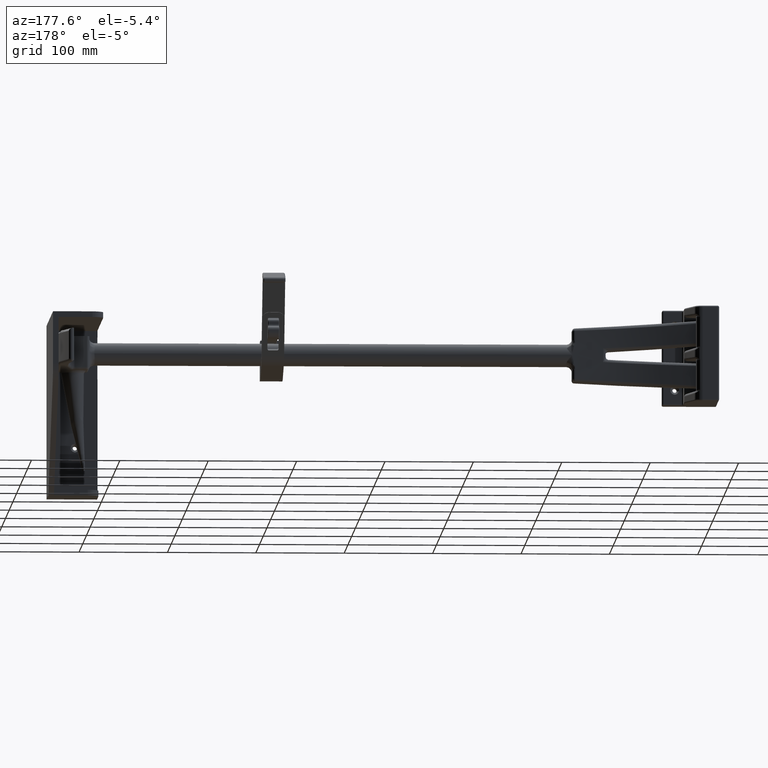
[diagram: clean part render]
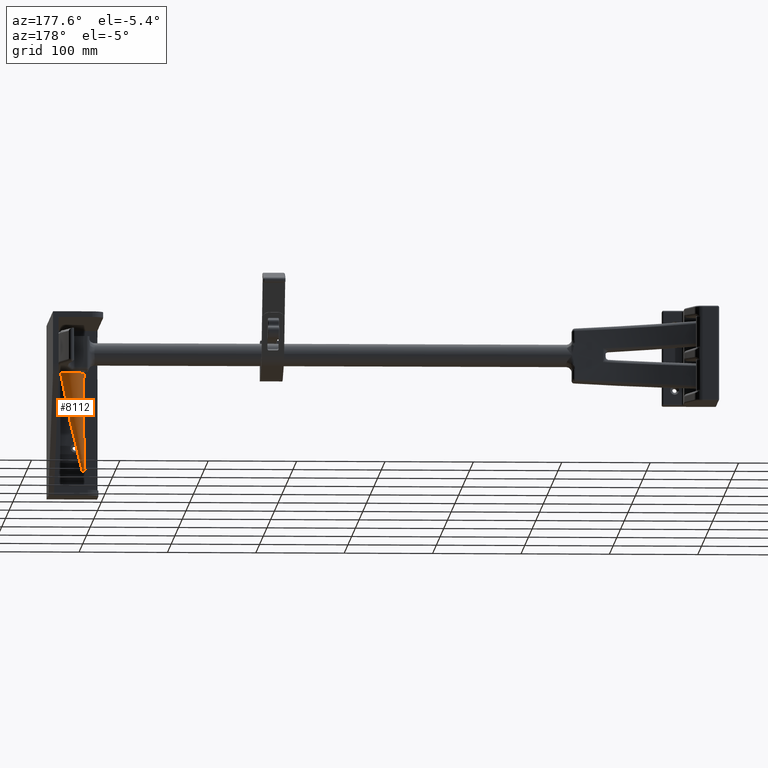
[diagram: same view with one face highlighted and labeled with its STEP entity id]
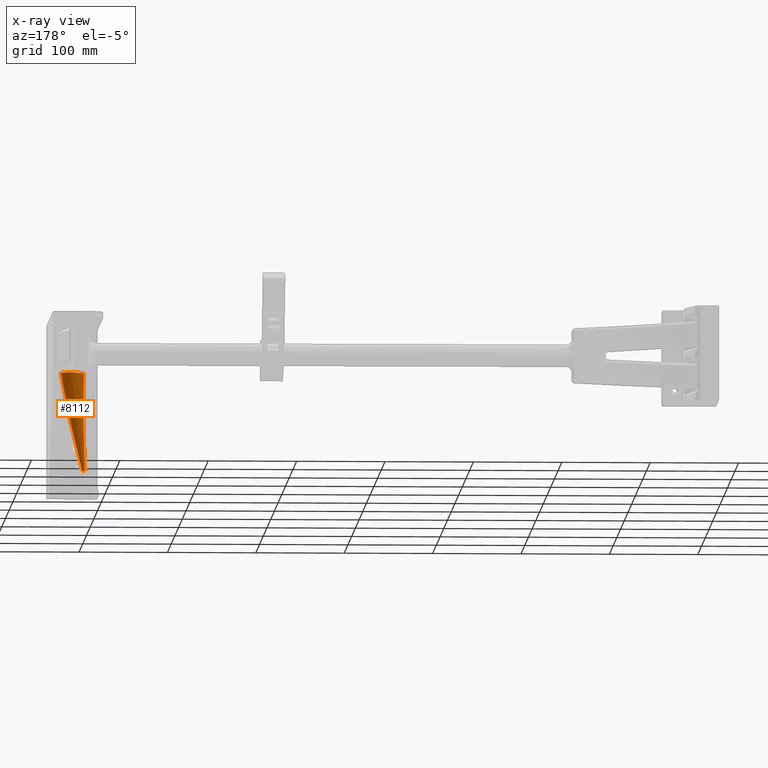
[diagram: x-ray of the same camera — body ghosted, the highlighted face saturated]
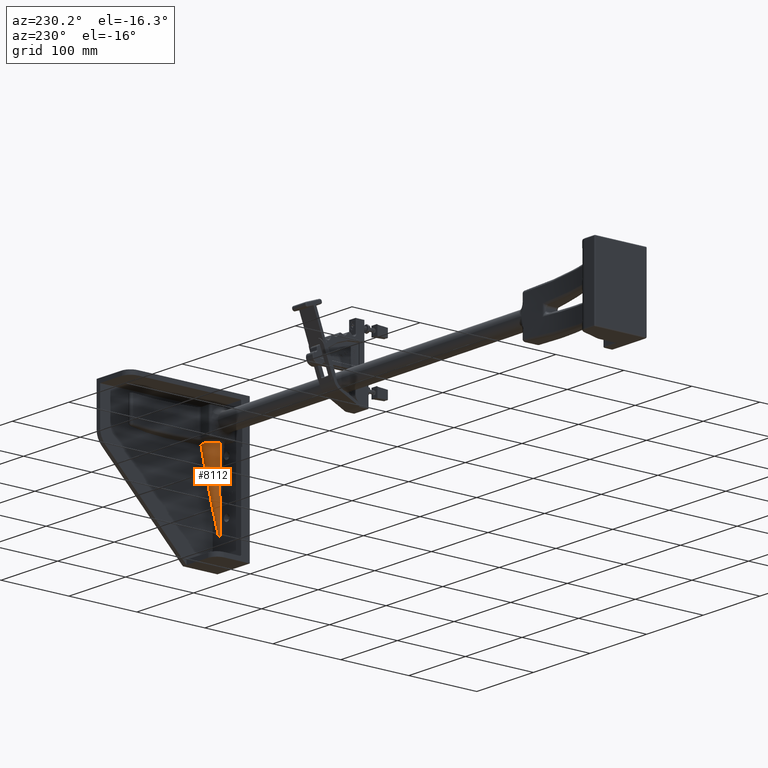
[diagram: same view with one face highlighted and labeled with its STEP entity id]
A machine part, auxiliary view. The second image highlights one B-rep face of the part: STEP entity #8112.
The next image is the same camera in x-ray: the body ghosted, the highlighted face saturated — about 0% of this face is hidden behind the body in this view.
A second angle (auxiliary view) of the same face is appended — the face is thin or edge-on in the first view.
In plain terms, the highlighted face is a freeform B-spline surface patch.
Its self-contained STEP definition (entity closure, byte-faithful):
#4794 = EDGE_CURVE ( 'NONE', #10147, #10146, #57822, .T. ) ;
#4806 = EDGE_CURVE ( 'NONE', #10146, #10155, #57826, .T. ) ;
#4811 = EDGE_CURVE ( 'NONE', #10153, #10154, #57828, .T. ) ;
#5017 = EDGE_CURVE ( 'NONE', #10154, #10155, #28096, .T. ) ;
#5022 = EDGE_CURVE ( 'NONE', #10153, #10147, #36990, .T. ) ;
#7695 = EDGE_LOOP ( 'NONE', ( #11149, #11150, #11151, #11152, #11153 ) ) ;
#8112 = ADVANCED_FACE ( 'NONE', ( #40649 ), #41552, .T. ) ;
#10146 = VERTEX_POINT ( 'NONE', #17894 ) ;
#10147 = VERTEX_POINT ( 'NONE', #17896 ) ;
#10153 = VERTEX_POINT ( 'NONE', #17907 ) ;
#10154 = VERTEX_POINT ( 'NONE', #17909 ) ;
#10155 = VERTEX_POINT ( 'NONE', #17911 ) ;
#11149 = ORIENTED_EDGE ( 'NONE', *, *, #4811, .F. ) ;
#11150 = ORIENTED_EDGE ( 'NONE', *, *, #5022, .T. ) ;
#11151 = ORIENTED_EDGE ( 'NONE', *, *, #4794, .T. ) ;
#11152 = ORIENTED_EDGE ( 'NONE', *, *, #4806, .T. ) ;
#11153 = ORIENTED_EDGE ( 'NONE', *, *, #5017, .F. ) ;
#17894 = CARTESIAN_POINT ( 'NONE',  ( -0.5131383665071449500, 6.629313020502923800E-013, 0.8532875652605973500 ) ) ;
#17896 = CARTESIAN_POINT ( 'NONE',  ( 0.5243324148243975200, 0.05450373086859408600, 0.8709151396072245500 ) ) ;
#17907 = CARTESIAN_POINT ( 'NONE',  ( 0.5272021365097825400, -1.762304985942393900E-015, 0.8709644764985012800 ) ) ;
#17909 = CARTESIAN_POINT ( 'NONE',  ( 0.5722855644607270900, -2.779544606659962700E-015, 5.190549611037508400 ) ) ;
#17911 = CARTESIAN_POINT ( 'NONE',  ( 0.4548239868624890400, 1.368314692750049300E-015, 5.233302128953215300 ) ) ;
#28096 = CIRCLE ( 'NONE', #34827, 0.06249999999999956300 ) ;
#34827 = AXIS2_PLACEMENT_3D ( 'NONE', #36567, #36577, #36578 ) ;
#35950 = CARTESIAN_POINT ( 'NONE',  ( 0.5243324148243975200, 0.05450373086859408600, 0.8709151396072245500 ) ) ;
#35966 = CARTESIAN_POINT ( 'NONE',  ( 0.5208878161223587900, 0.08712434551723022300, 0.8708559194797317300 ) ) ;
#35967 = CARTESIAN_POINT ( 'NONE',  ( 0.5143992443711220600, 0.1192264855308592700, 0.8707443663585284800 ) ) ;
#35968 = CARTESIAN_POINT ( 'NONE',  ( 0.5000193332336480000, 0.1665881710525679600, 0.8704971576764003500 ) ) ;
#35969 = CARTESIAN_POINT ( 'NONE',  ( 0.4944196785040305100, 0.1822868276204285000, 0.8704008944611534300 ) ) ;
#35970 = CARTESIAN_POINT ( 'NONE',  ( 0.4818797052229207300, 0.2127631786279574300, 0.8701853304010881400 ) ) ;
#35971 = CARTESIAN_POINT ( 'NONE',  ( 0.4749206512985544300, 0.2276195383945248700, 0.8700657074036931600 ) ) ;
#35972 = CARTESIAN_POINT ( 'NONE',  ( 0.4520166035469699300, 0.2710655098674701900, 0.8696720242252022900 ) ) ;
#35973 = CARTESIAN_POINT ( 'NONE',  ( 0.4340591687950718400, 0.2985477730849097100, 0.8693633935736382300 ) ) ;
#35974 = CARTESIAN_POINT ( 'NONE',  ( 0.3925647698841259700, 0.3503895595207272000, 0.8686504517968605100 ) ) ;
#35975 = CARTESIAN_POINT ( 'NONE',  ( 0.3696906398086405300, 0.3739230638824455600, 0.8682575296826037200 ) ) ;
#35976 = CARTESIAN_POINT ( 'NONE',  ( 0.3323217716161879800, 0.4057912169079948000, 0.8676159535061162000 ) ) ;
#35977 = CARTESIAN_POINT ( 'NONE',  ( 0.3193523068915331000, 0.4158379178665230200, 0.8673933357624114000 ) ) ;
#35978 = CARTESIAN_POINT ( 'NONE',  ( 0.2923669925881473600, 0.4347567997639114600, 0.8669302880954620200 ) ) ;
#35979 = CARTESIAN_POINT ( 'NONE',  ( 0.2782802916987858800, 0.4436632722231015900, 0.8666886437663687800 ) ) ;
#35980 = CARTESIAN_POINT ( 'NONE',  ( 0.2352395698227274000, 0.4680828382521456900, 0.8659506122031974700 ) ) ;
#35981 = CARTESIAN_POINT ( 'NONE',  ( 0.2053518545070108800, 0.4814649442871367100, 0.8654384926809688400 ) ) ;
#35982 = CARTESIAN_POINT ( 'NONE',  ( 0.1587612772079680400, 0.4972690036488863800, 0.8646410620214442000 ) ) ;
#35983 = CARTESIAN_POINT ( 'NONE',  ( 0.1429359739068463100, 0.5018207899949739300, 0.8643703441809044200 ) ) ;
#35984 = CARTESIAN_POINT ( 'NONE',  ( 0.1106761470153259400, 0.5094457889646910600, 0.8638188400637935000 ) ) ;
#35985 = CARTESIAN_POINT ( 'NONE',  ( 0.09440474060947221000, 0.5124756904185757700, 0.8635408438410688800 ) ) ;
#35986 = CARTESIAN_POINT ( 'NONE',  ( 0.04560004841401710900, 0.5192031440788018600, 0.8627076088556698800 ) ) ;
#35987 = CARTESIAN_POINT ( 'NONE',  ( 0.01289734845079052100, 0.5206021676672725200, 0.8621500639296244600 ) ) ;
#35988 = CARTESIAN_POINT ( 'NONE',  ( -0.03640765367997364500, 0.5180422700648731300, 0.8613109079842827800 ) ) ;
#35989 = CARTESIAN_POINT ( 'NONE',  ( -0.05297363578303154700, 0.5163913928223609100, 0.8610292025808112800 ) ) ;
#35990 = CARTESIAN_POINT ( 'NONE',  ( -0.08565343652153127600, 0.5115480876513709400, 0.8604739915898830200 ) ) ;
#35991 = CARTESIAN_POINT ( 'NONE',  ( -0.1017719772540745700, 0.5083664921059059000, 0.8602004021991671600 ) ) ;
#35992 = CARTESIAN_POINT ( 'NONE',  ( -0.1494800698230659700, 0.4965986908165372400, 0.8593913924466997100 ) ) ;
#35993 = CARTESIAN_POINT ( 'NONE',  ( -0.1804279174431469300, 0.4858094688885250500, 0.8588676346999609700 ) ) ;
#35994 = CARTESIAN_POINT ( 'NONE',  ( -0.2255234133214305500, 0.4650724454706634500, 0.8581059698233675100 ) ) ;
#35995 = CARTESIAN_POINT ( 'NONE',  ( -0.2402659077525332300, 0.4574170872717441300, 0.8578572323456807900 ) ) ;
#35996 = CARTESIAN_POINT ( 'NONE',  ( -0.2686953055448108000, 0.4409013677769189100, 0.8573780466676831400 ) ) ;
#35997 = CARTESIAN_POINT ( 'NONE',  ( -0.2962160318054678500, 0.4231155007156148200, 0.8569146680385836300 ) ) ;
#35998 = CARTESIAN_POINT ( 'NONE',  ( -0.3219432280963122100, 0.4028226276710152900, 0.8564823600647142300 ) ) ;
#35999 = CARTESIAN_POINT ( 'NONE',  ( -0.3467613092080753000, 0.3812589903384818700, 0.8560657217191056700 ) ) ;
#36000 = CARTESIAN_POINT ( 'NONE',  ( -0.3587696715258497100, 0.3697836268491062100, 0.8558643349404322400 ) ) ;
#36001 = CARTESIAN_POINT ( 'NONE',  ( -0.3929727084886354700, 0.3338042268186949300, 0.8552912448437718400 ) ) ;
#36002 = CARTESIAN_POINT ( 'NONE',  ( -0.4131830892351738300, 0.3079986888744532500, 0.8549533154352451100 ) ) ;
#36003 = CARTESIAN_POINT ( 'NONE',  ( -0.4397254070189917100, 0.2666416562062760000, 0.8545100996290895300 ) ) ;
#36004 = CARTESIAN_POINT ( 'NONE',  ( -0.4479396999633839000, 0.2524115263878185500, 0.8543730467760577400 ) ) ;
#36005 = CARTESIAN_POINT ( 'NONE',  ( -0.4630690506005523100, 0.2230392384742069200, 0.8541207739359932800 ) ) ;
#36006 = CARTESIAN_POINT ( 'NONE',  ( -0.4699758139458993200, 0.2078880061137126400, 0.8540056929273220900 ) ) ;
#36007 = CARTESIAN_POINT ( 'NONE',  ( -0.4882964795530975700, 0.1620341732876141900, 0.8537005824166418200 ) ) ;
#36008 = CARTESIAN_POINT ( 'NONE',  ( -0.4975070056981598100, 0.1306199787562830300, 0.8535474033786150100 ) ) ;
#36009 = CARTESIAN_POINT ( 'NONE',  ( -0.5068449393229849100, 0.08223883210302999900, 0.8533921528566612600 ) ) ;
#36010 = CARTESIAN_POINT ( 'NONE',  ( -0.5092107081665319100, 0.06585236333142685500, 0.8533528342502011400 ) ) ;
#36011 = CARTESIAN_POINT ( 'NONE',  ( -0.5123628694815306500, 0.03285076570429196200, 0.8533004500087680900 ) ) ;
#36012 = CARTESIAN_POINT ( 'NONE',  ( -0.5131383665071238600, 0.01640077489689642900, 0.8532875652605983500 ) ) ;
#36013 = CARTESIAN_POINT ( 'NONE',  ( -0.5131383665071449500, 6.629313020502923800E-013, 0.8532875652605973500 ) ) ;
#36033 = CARTESIAN_POINT ( 'NONE',  ( -0.5131383665071449500, 6.629313020502923800E-013, 0.8532875652605973500 ) ) ;
#36065 = CARTESIAN_POINT ( 'NONE',  ( 0.5272021365097825400, -1.762304985942393900E-015, 0.8709644764985012800 ) ) ;
#36066 = CARTESIAN_POINT ( 'NONE',  ( -0.2530202849528943600, -7.952004919855246300E-016, 2.328041278977429400 ) ) ;
#36067 = CARTESIAN_POINT ( 'NONE',  ( 0.06918515493613164300, -2.856459564420165900E-016, 3.786006166343555800 ) ) ;
#36068 = CARTESIAN_POINT ( 'NONE',  ( 0.4548239868624890400, 1.368314692750049300E-015, 5.233302128953215300 ) ) ;
#36119 = CARTESIAN_POINT ( 'NONE',  ( 0.4802213261517082600, -1.433628634304622600E-017, 2.325432547414418000 ) ) ;
#36120 = CARTESIAN_POINT ( 'NONE',  ( 0.4948061622564130000, -2.658180004636943300E-016, 3.763280228771305000 ) ) ;
#36121 = CARTESIAN_POINT ( 'NONE',  ( 0.5722855644607270900, -2.779544606659962700E-015, 5.190549611037508400 ) ) ;
#36567 = CARTESIAN_POINT ( 'NONE',  ( 0.5135547756616081200, -1.639108796198557900E-015, 5.211925869995361900 ) ) ;
#36577 = DIRECTION ( 'NONE',  ( 0.3420201433256697700, 2.932276439638236400E-018, 0.9396926207859080900 ) ) ;
#36578 = DIRECTION ( 'NONE',  ( 0.9396926207859107600, -6.268246317891850500E-018, -0.3420201433256623300 ) ) ;
#36579 = CARTESIAN_POINT ( 'NONE',  ( 0.5272021365097825400, -1.762304985942393900E-015, 0.8709644764985012800 ) ) ;
#36582 = CARTESIAN_POINT ( 'NONE',  ( 0.5272021365097827600, 0.009165420928491872400, 0.8709644764985016200 ) ) ;
#36583 = CARTESIAN_POINT ( 'NONE',  ( 0.5267169471874978400, 0.02741362133218483100, 0.8709561349860021100 ) ) ;
#36584 = CARTESIAN_POINT ( 'NONE',  ( 0.5252831446705184000, 0.04550024610071201600, 0.8709314847166461600 ) ) ;
#36585 = CARTESIAN_POINT ( 'NONE',  ( 0.5243324148243975200, 0.05450373086859408600, 0.8709151396072245500 ) ) ;
#36990 = B_SPLINE_CURVE_WITH_KNOTS ( 'NONE', 3,
 ( #36579, #36582, #36583, #36584, #36585 ),
 .UNSPECIFIED., .F., .F.,
 ( 4, 1, 4 ),
 ( 2.065707796375194900E-009, 0.0006884942833524680100, 0.001376986500997139600 ),
 .UNSPECIFIED. ) ;
#40649 = FACE_OUTER_BOUND ( 'NONE', #7695, .T. ) ;
#41552 =( BOUNDED_SURFACE ( )  B_SPLINE_SURFACE ( 3, 3, ( 
 ( #62972, #62975, #62980, #62974 ),
 ( #62981, #62982, #62983, #62984 ),
 ( #62985, #62986, #62987, #62988 ),
 ( #62989, #62990, #62991, #62992 ) ),
 .UNSPECIFIED., .F., .F., .T. ) 
 B_SPLINE_SURFACE_WITH_KNOTS ( ( 4, 4 ),
 ( 4, 4 ),
 ( 0.5000000000000000000, 1.000000000000000000 ),
 ( 0.01694403650407579800, 1.000000000000000000 ),
 .UNSPECIFIED. ) 
 GEOMETRIC_REPRESENTATION_ITEM ( )  RATIONAL_B_SPLINE_SURFACE ( (
 ( 1.000000000000000000, 1.000000000000000000, 1.000000000000000000, 1.000000000000000000),
 ( 0.3333333333333332000, 0.3333333333333332000, 0.3333333333333332600, 0.3333333333333333700),
 ( 0.3333333333333332000, 0.3333333333333332000, 0.3333333333333332600, 0.3333333333333333700),
 ( 1.000000000000000000, 1.000000000000000000, 1.000000000000000000, 1.000000000000000000) ) ) 
 REPRESENTATION_ITEM ( '' )  SURFACE ( )  );
#57822 = B_SPLINE_CURVE_WITH_KNOTS ( 'NONE', 3,
 ( #35950, #35966, #35967, #35968, #35969, #35970, #35971, #35972, #35973, #35974, #35975, #35976, #35977, #35978, #35979, #35980, #35981, #35982, #35983, #35984, #35985, #35986, #35987, #35988, #35989, #35990, #35991, #35992, #35993, #35994, #35995, #35996, #35997, #35998, #35999, #36000, #36001, #36002, #36003, #36004, #36005, #36006, #36007, #36008, #36009, #36010, #36011, #36012, #36013 ),
 .UNSPECIFIED., .F., .F.,
 ( 4, 2, 2, 2, 2, 2, 2, 2, 2, 2, 2, 2, 2, 2, 2, 2, 1, 2, 2, 2, 2, 2, 2, 2, 4 ),
 ( 0.001376986500997139600, 0.003871469459472218700, 0.005118710938709756900, 0.006365952417947295100, 0.008860435376422374000, 0.01135491833489745600, 0.01260215981413499500, 0.01384940129337253500, 0.01634388425184761900, 0.01759112573108515700, 0.01883836721032269800, 0.02133285016879777500, 0.02258009164803531600, 0.02382733312727285500, 0.02632181608574793400, 0.02756905756498547300, 0.02881629904422301400, 0.03006354052346055200, 0.03131078200269808700, 0.03380526496117317000, 0.03505250644041070500, 0.03629974791964824700, 0.03879423087812332300, 0.04004147235736086500, 0.04128871383659839900 ),
 .UNSPECIFIED. ) ;
#57826 = B_SPLINE_CURVE_WITH_KNOTS ( 'NONE', 3,
 ( #36033, #36066, #36067, #36068 ),
 .UNSPECIFIED., .F., .F.,
 ( 4, 4 ),
 ( 0.02280719334401173200, 1.000000000000000000 ),
 .UNSPECIFIED. ) ;
#57828 = B_SPLINE_CURVE_WITH_KNOTS ( 'NONE', 3,
 ( #36065, #36119, #36120, #36121 ),
 .UNSPECIFIED., .F., .F.,
 ( 4, 4 ),
 ( 0.02696635727835950200, 1.000000000000000000 ),
 .UNSPECIFIED. ) ;
#62972 = CARTESIAN_POINT ( 'NONE',  ( 0.5286734476419325800, -1.816956743628294000E-015, 0.8260157836743445800 ) ) ;
#62974 = CARTESIAN_POINT ( 'NONE',  ( 0.5722855644607004500, 0.0000000000000000000, 5.190549611037508400 ) ) ;
#62975 = CARTESIAN_POINT ( 'NONE',  ( 0.4799275488853418900, -9.100843510026526600E-018, 2.295811543459703500 ) ) ;
#62980 = CARTESIAN_POINT ( 'NONE',  ( 0.4940081185010920500, -2.685559461536029800E-016, 3.748579245216024300 ) ) ;
#62981 = CARTESIAN_POINT ( 'NONE',  ( 0.5286734476419344700, 1.046614965777427100, 0.8260157836743449200 ) ) ;
#62982 = CARTESIAN_POINT ( 'NONE',  ( 0.4799275488853749800, 0.7394099771849497200, 2.295811543459704400 ) ) ;
#62983 = CARTESIAN_POINT ( 'NONE',  ( 0.4940081185011225300, 0.4322049885924757500, 3.748579245216026000 ) ) ;
#62984 = CARTESIAN_POINT ( 'NONE',  ( 0.5722855644607091100, 0.1249999999999989200, 5.190549611037508400 ) ) ;
#62985 = CARTESIAN_POINT ( 'NONE',  ( -0.5178137868311352100, 1.046614965777428900, 0.8267401838985498600 ) ) ;
#62986 = CARTESIAN_POINT ( 'NONE',  ( -0.2568844666294405300, 0.7394099771849503800, 2.310545316247743400 ) ) ;
#62987 = CARTESIAN_POINT ( 'NONE',  ( 0.06687132194458382500, 0.4322049885924761400, 3.777322390567898800 ) ) ;
#62988 = CARTESIAN_POINT ( 'NONE',  ( 0.4548239868624915900, 0.1249999999999993300, 5.233302128953215300 ) ) ;
#62989 = CARTESIAN_POINT ( 'NONE',  ( -0.5178137868311645200, -3.000273727135190500E-016, 0.8267401838985495300 ) ) ;
#62990 = CARTESIAN_POINT ( 'NONE',  ( -0.2568844666294492500, -8.013527110792258100E-016, 2.310545316247744700 ) ) ;
#62991 = CARTESIAN_POINT ( 'NONE',  ( 0.06687132194457365300, -2.824425057920730500E-016, 3.777322390567897900 ) ) ;
#62992 = CARTESIAN_POINT ( 'NONE',  ( 0.4548239868624632300, -8.195543980992789700E-016, 5.233302128953215300 ) ) ;